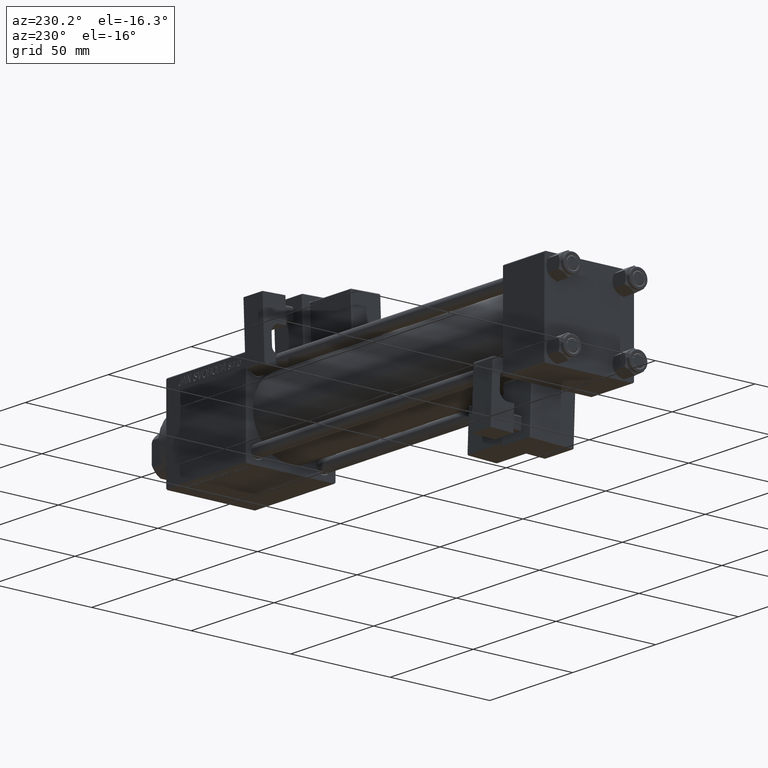
[diagram: clean part render]
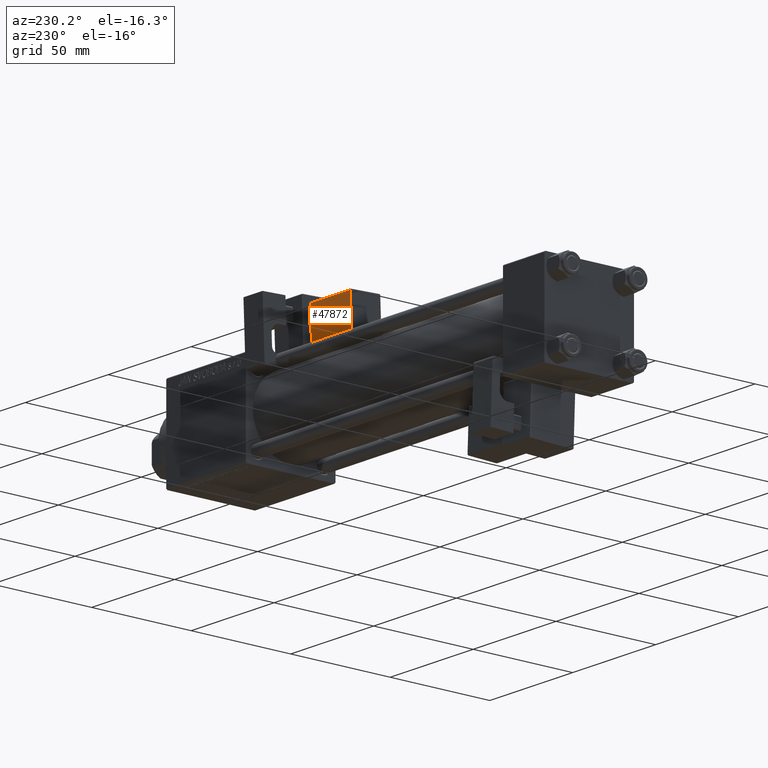
[diagram: same view with one face highlighted and labeled with its STEP entity id]
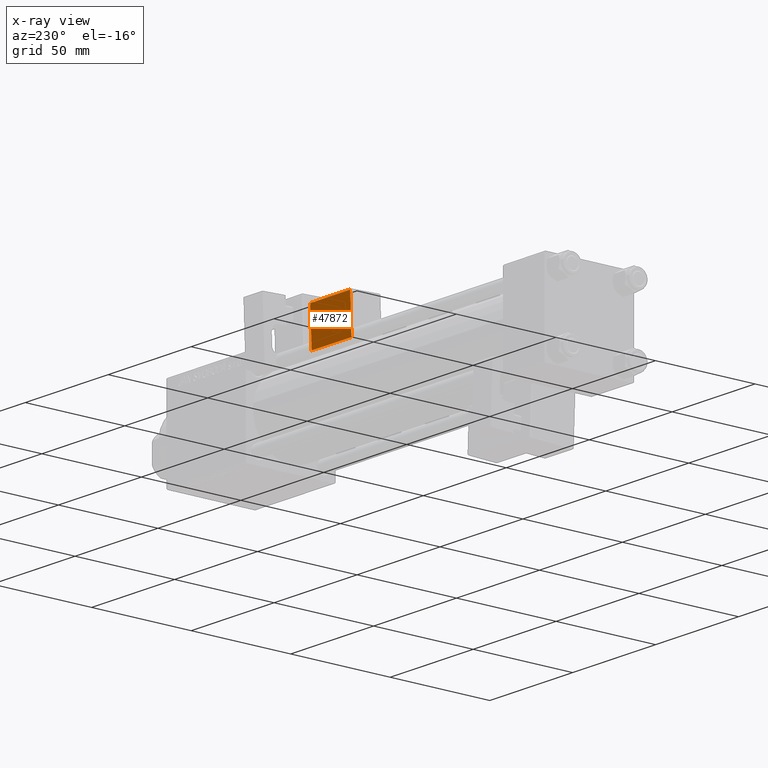
[diagram: x-ray of the same camera — body ghosted, the highlighted face saturated]
A machine part, auxiliary view. The second image highlights one B-rep face of the part: STEP entity #47872.
The next image is the same camera in x-ray: the body ghosted, the highlighted face saturated — about 0% of this face is hidden behind the body in this view.
In plain terms, the highlighted planar face has unit normal (-0, -0.9994, 0.0353).
Its self-contained STEP definition (entity closure, byte-faithful):
#728 = LINE ( 'NONE', #8928, #33169 ) ;
#3632 = DIRECTION ( 'NONE',  ( 0.000000000000000000, -1.000000000000000000, 0.000000000000000000 ) ) ;
#8928 = CARTESIAN_POINT ( 'NONE',  ( 33.25000000000000000, -15.25000000000000000, 2.000000000000008438 ) ) ;
#10077 = VERTEX_POINT ( 'NONE', #19362 ) ;
#10282 = EDGE_CURVE ( 'NONE', #50573, #42172, #13074, .T. ) ;
#10661 = EDGE_CURVE ( 'NONE', #10077, #25822, #18696, .T. ) ;
#11061 = CARTESIAN_POINT ( 'NONE',  ( 33.75000000000000000, -15.25000000000000000, 2.500000000000009326 ) ) ;
#11903 = CARTESIAN_POINT ( 'NONE',  ( 9.250000000000001776, -15.25000000000000000, 22.00000000000000355 ) ) ;
#12024 = CARTESIAN_POINT ( 'NONE',  ( 9.250000000000003553, -15.25000000000000000, 2.500000000000005773 ) ) ;
#13074 = LINE ( 'NONE', #46734, #23491 ) ;
#16238 = AXIS2_PLACEMENT_3D ( 'NONE', #34006, #3632, #20245 ) ;
#17438 = PLANE ( 'NONE',  #16238 ) ;
#18696 = LINE ( 'NONE', #11061, #40014 ) ;
#18723 = EDGE_LOOP ( 'NONE', ( #48418, #52258, #23457, #50899 ) ) ;
#19362 = CARTESIAN_POINT ( 'NONE',  ( 33.25000000000000000, -15.25000000000000000, 2.500000000000009326 ) ) ;
#20245 = DIRECTION ( 'NONE',  ( 0.000000000000000000, -0.000000000000000000, -1.000000000000000000 ) ) ;
#21223 = CARTESIAN_POINT ( 'NONE',  ( 33.25000000000000000, -15.25000000000000000, 21.50000000000000355 ) ) ;
#23457 = ORIENTED_EDGE ( 'NONE', *, *, #10282, .T. ) ;
#23491 = VECTOR ( 'NONE', #46204, 1000.000000000000000 ) ;
#25822 = VERTEX_POINT ( 'NONE', #12024 ) ;
#30959 = EDGE_CURVE ( 'NONE', #42172, #10077, #728, .T. ) ;
#31100 = CARTESIAN_POINT ( 'NONE',  ( 9.250000000000001776, -15.25000000000000000, 21.50000000000000000 ) ) ;
#33169 = VECTOR ( 'NONE', #49930, 1000.000000000000000 ) ;
#34006 = CARTESIAN_POINT ( 'NONE',  ( 33.75000000000000000, -15.25000000000000000, 22.00000000000000711 ) ) ;
#37693 = DIRECTION ( 'NONE',  ( -1.334402673828313339E-16, 0.000000000000000000, 1.000000000000000000 ) ) ;
#39560 = EDGE_CURVE ( 'NONE', #25822, #50573, #45325, .T. ) ;
#40014 = VECTOR ( 'NONE', #43134, 1000.000000000000000 ) ;
#40889 = FACE_OUTER_BOUND ( 'NONE', #18723, .T. ) ;
#42172 = VERTEX_POINT ( 'NONE', #21223 ) ;
#43134 = DIRECTION ( 'NONE',  ( -1.000000000000000000, 0.000000000000000000, -1.334402673828313339E-16 ) ) ;
#45325 = LINE ( 'NONE', #11903, #48087 ) ;
#46204 = DIRECTION ( 'NONE',  ( 1.000000000000000000, -0.000000000000000000, 1.334402673828313339E-16 ) ) ;
#46734 = CARTESIAN_POINT ( 'NONE',  ( 33.75000000000000000, -15.25000000000000000, 21.50000000000000355 ) ) ;
#47872 = ADVANCED_FACE ( 'NONE', ( #40889 ), #17438, .F. ) ;
#48087 = VECTOR ( 'NONE', #37693, 1000.000000000000000 ) ;
#48418 = ORIENTED_EDGE ( 'NONE', *, *, #10661, .T. ) ;
#49930 = DIRECTION ( 'NONE',  ( 1.734723475976807341E-16, -0.000000000000000000, -1.000000000000000000 ) ) ;
#50573 = VERTEX_POINT ( 'NONE', #31100 ) ;
#50899 = ORIENTED_EDGE ( 'NONE', *, *, #30959, .T. ) ;
#52258 = ORIENTED_EDGE ( 'NONE', *, *, #39560, .T. ) ;